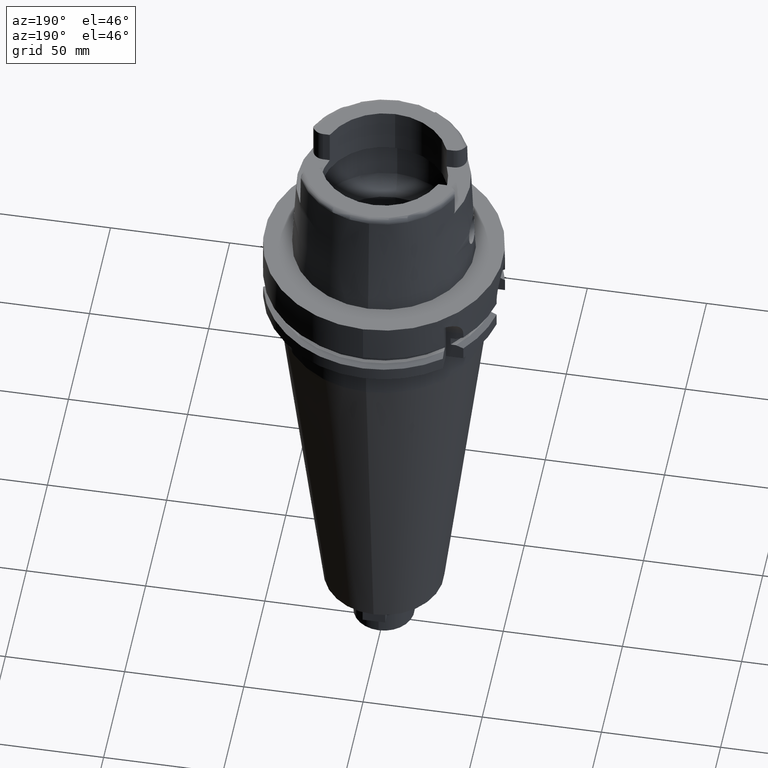
[diagram: clean part render]
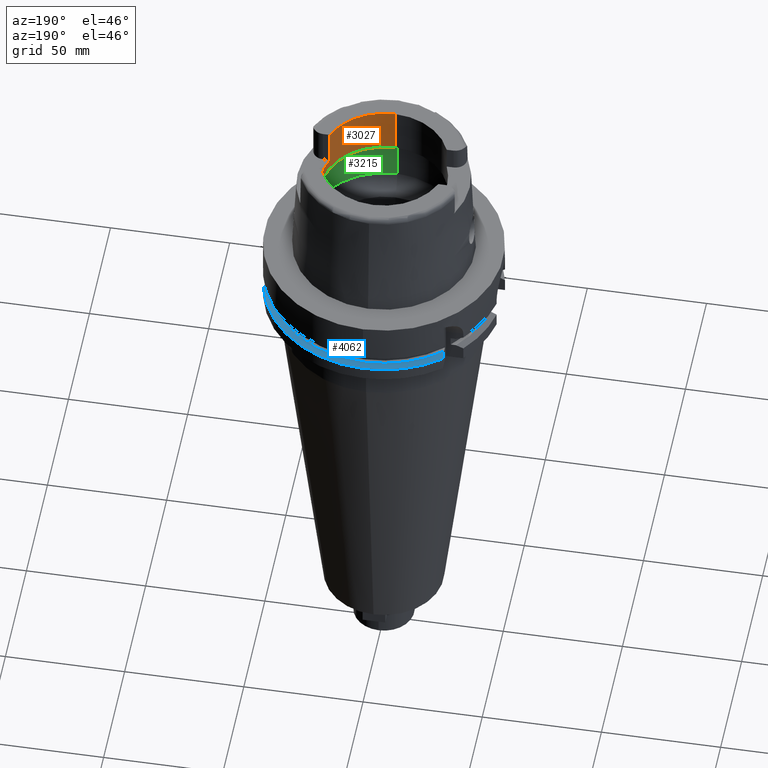
[diagram: same view with three faces highlighted in distinct colors, each labeled with its STEP entity id]
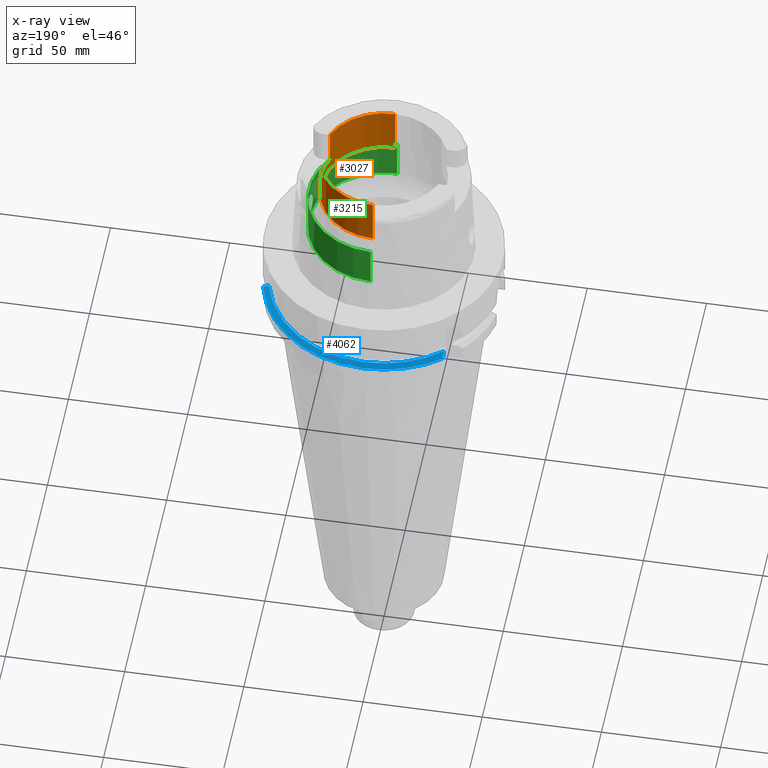
[diagram: x-ray of the same camera — body ghosted, the three highlighted faces saturated]
A machine part, auxiliary view with three faces highlighted in distinct colors.
The next image is the same camera in x-ray (body ghosted, the three faces saturated) — at least one of them is partly hidden behind the body in this view.
Their STEP definitions:

[orange] entity #3027 — the highlighted cylindrical surface (partial cylindrical patch) has radius 26.5 mm, axis along (0, 0, 1).
#42=CARTESIAN_POINT('',(0.E0,0.E0,5.E1));
#43=DIRECTION('',(0.E0,0.E0,1.E0));
#44=DIRECTION('',(9.259134021805E-1,3.777358490566E-1,0.E0));
#45=AXIS2_PLACEMENT_3D('',#42,#43,#44);
#86=DIRECTION('',(0.E0,4.370575506605E-14,1.E0));
#87=VECTOR('',#86,1.999662432703E1);
#88=CARTESIAN_POINT('',(0.E0,-2.65E1,3.000337567297E1));
#89=LINE('',#88,#87);
#183=CARTESIAN_POINT('',(0.E0,0.E0,5.E1));
#184=DIRECTION('',(0.E0,0.E0,1.E0));
#185=DIRECTION('',(0.E0,-1.E0,0.E0));
#186=AXIS2_PLACEMENT_3D('',#183,#184,#185);
#417=CARTESIAN_POINT('',(0.E0,0.E0,3.5E1));
#418=DIRECTION('',(0.E0,0.E0,1.E0));
#419=DIRECTION('',(9.259134021805E-1,-3.777358490566E-1,0.E0));
#420=AXIS2_PLACEMENT_3D('',#417,#418,#419);
#477=DIRECTION('',(0.E0,0.E0,1.E0));
#478=VECTOR('',#477,1.5E1);
#479=CARTESIAN_POINT('',(2.453670515778E1,-1.001E1,3.5E1));
#480=LINE('',#479,#478);
#484=DIRECTION('',(0.E0,-4.370575506605E-14,1.E0));
#485=VECTOR('',#484,1.999662432703E1);
#486=CARTESIAN_POINT('',(0.E0,2.65E1,3.000337567297E1));
#487=LINE('',#486,#485);
#491=DIRECTION('',(0.E0,0.E0,-1.E0));
#492=VECTOR('',#491,1.5E1);
#493=CARTESIAN_POINT('',(2.453670515778E1,1.001E1,5.E1));
#494=LINE('',#493,#492);
#526=CARTESIAN_POINT('',(0.E0,0.E0,3.000337567297E1));
#527=DIRECTION('',(0.E0,0.E0,-1.E0));
#528=DIRECTION('',(0.E0,1.E0,0.E0));
#529=AXIS2_PLACEMENT_3D('',#526,#527,#528);
#2402=CARTESIAN_POINT('',(2.453670515778E1,1.001E1,5.E1));
#2403=VERTEX_POINT('',#2402);
#2404=CARTESIAN_POINT('',(0.E0,2.65E1,5.E1));
#2405=VERTEX_POINT('',#2404);
#2414=CARTESIAN_POINT('',(0.E0,-2.65E1,5.E1));
#2415=VERTEX_POINT('',#2414);
#2416=CARTESIAN_POINT('',(2.453670515778E1,-1.001E1,5.E1));
#2417=VERTEX_POINT('',#2416);
#2432=CARTESIAN_POINT('',(0.E0,2.65E1,3.000337567297E1));
#2433=VERTEX_POINT('',#2432);
#2434=CARTESIAN_POINT('',(0.E0,-2.65E1,3.000337567297E1));
#2435=VERTEX_POINT('',#2434);
#2468=CARTESIAN_POINT('',(2.453670515778E1,-1.001E1,3.5E1));
#2469=CARTESIAN_POINT('',(2.453670515778E1,1.001E1,3.5E1));
#2470=VERTEX_POINT('',#2468);
#2471=VERTEX_POINT('',#2469);
#3009=CARTESIAN_POINT('',(0.E0,0.E0,-2.3035E2));
#3010=DIRECTION('',(0.E0,0.E0,1.E0));
#3011=DIRECTION('',(0.E0,1.E0,0.E0));
#3012=AXIS2_PLACEMENT_3D('',#3009,#3010,#3011);
#3013=CYLINDRICAL_SURFACE('',#3012,2.65E1);
#3014=ORIENTED_EDGE('',*,*,#2991,.F.);
#3016=ORIENTED_EDGE('',*,*,#3015,.T.);
#3017=ORIENTED_EDGE('',*,*,#2873,.F.);
#3018=ORIENTED_EDGE('',*,*,#2820,.F.);
#3020=ORIENTED_EDGE('',*,*,#3019,.F.);
#3021=ORIENTED_EDGE('',*,*,#2816,.T.);
#3022=ORIENTED_EDGE('',*,*,#2767,.F.);
#3024=ORIENTED_EDGE('',*,*,#3023,.T.);
#3025=EDGE_LOOP('',(#3014,#3016,#3017,#3018,#3020,#3021,#3022,#3024));
#3026=FACE_OUTER_BOUND('',#3025,.F.);
#46=CIRCLE('',#45,2.65E1);
#187=CIRCLE('',#186,2.65E1);
#421=CIRCLE('',#420,2.65E1);
#530=CIRCLE('',#529,2.65E1);
#2767=EDGE_CURVE('',#2403,#2405,#46,.T.);
#2816=EDGE_CURVE('',#2433,#2405,#487,.T.);
#2820=EDGE_CURVE('',#2435,#2415,#89,.T.);
#2873=EDGE_CURVE('',#2415,#2417,#187,.T.);
#2991=EDGE_CURVE('',#2470,#2471,#421,.T.);
#3015=EDGE_CURVE('',#2470,#2417,#480,.T.);
#3019=EDGE_CURVE('',#2433,#2435,#530,.T.);
#3023=EDGE_CURVE('',#2403,#2471,#494,.T.);
#3027=ADVANCED_FACE('',(#3026),#3013,.F.);

[blue] entity #4062 — the highlighted conical surface has half-angle 60 deg.
#1678=CARTESIAN_POINT('',(0.E0,0.E0,-2.1875E1));
#1679=DIRECTION('',(0.E0,0.E0,-1.E0));
#1680=DIRECTION('',(-6.614507215588E-1,7.499886285467E-1,0.E0));
#1681=AXIS2_PLACEMENT_3D('',#1678,#1679,#1680);
#1686=CARTESIAN_POINT('',(0.E0,0.E0,-2.1875E1));
#1687=DIRECTION('',(0.E0,0.E0,-1.E0));
#1688=DIRECTION('',(0.E0,1.E0,0.E0));
#1689=AXIS2_PLACEMENT_3D('',#1686,#1687,#1688);
#1710=CARTESIAN_POINT('',(-3.150000097289E1,3.571639618402E1,-2.1875E1));
#1711=CARTESIAN_POINT('',(-3.150000097289E1,3.605789002737E1,
-2.202286891912E1));
#1712=CARTESIAN_POINT('',(-3.150000002063E1,3.674380017621E1,
-2.232173054124E1));
#1713=CARTESIAN_POINT('',(-3.149999846845E1,3.778158713267E1,
-2.277929841516E1));
#1714=CARTESIAN_POINT('',(-3.150000355986E1,3.847935690318E1,
-2.309050172011E1));
#1715=CARTESIAN_POINT('',(-3.150000355986E1,3.882975374283E1,
-2.324760820812E1));
#1720=CARTESIAN_POINT('',(0.E0,0.E0,-2.324759526419E1));
#1721=DIRECTION('',(0.E0,0.E0,-1.E0));
#1722=DIRECTION('',(-6.3E-1,7.765951326142E-1,0.E0));
#1723=AXIS2_PLACEMENT_3D('',#1720,#1721,#1722);
#1728=CARTESIAN_POINT('',(0.E0,0.E0,-2.324759526419E1));
#1729=DIRECTION('',(0.E0,0.E0,-1.E0));
#1730=DIRECTION('',(0.E0,1.E0,0.E0));
#1731=AXIS2_PLACEMENT_3D('',#1728,#1729,#1730);
#1736=CARTESIAN_POINT('',(4.877499359303E1,1.1E1,-2.324759526419E1));
#1737=CARTESIAN_POINT('',(4.850402780016E1,1.1E1,-2.309498594403E1));
#1738=CARTESIAN_POINT('',(4.796198326448E1,1.1E1,-2.278983319674E1));
#1739=CARTESIAN_POINT('',(4.714858158705E1,1.1E1,-2.233229423038E1));
#1740=CARTESIAN_POINT('',(4.660608588337E1,1.1E1,-2.202740424370E1));
#1741=CARTESIAN_POINT('',(4.633477721644E1,1.1E1,-2.1875E1));
#2616=CARTESIAN_POINT('',(-3.150000355986E1,3.882975374283E1,
-2.324760820812E1));
#2617=VERTEX_POINT('',#2616);
#2618=VERTEX_POINT('',#1710);
#2636=CARTESIAN_POINT('',(4.877499359303E1,1.1E1,-2.324759526419E1));
#2637=VERTEX_POINT('',#2636);
#2638=CARTESIAN_POINT('',(0.E0,5.E1,-2.324759526419E1));
#2639=VERTEX_POINT('',#2638);
#2675=VERTEX_POINT('',#1741);
#2676=CARTESIAN_POINT('',(-1.598721155460E-14,4.762259526419E1,-2.1875E1));
#2677=VERTEX_POINT('',#2676);
#4049=CARTESIAN_POINT('',(0.E0,0.E0,-2.256129763210E1));
#4050=DIRECTION('',(0.E0,0.E0,-1.E0));
#4051=DIRECTION('',(0.E0,-1.E0,0.E0));
#4052=AXIS2_PLACEMENT_3D('',#4049,#4050,#4051);
#4053=CONICAL_SURFACE('',#4052,4.881129763209E1,6.E1);
#4054=ORIENTED_EDGE('',*,*,#3715,.T.);
#4055=ORIENTED_EDGE('',*,*,#3746,.T.);
#4056=ORIENTED_EDGE('',*,*,#3744,.T.);
#4057=ORIENTED_EDGE('',*,*,#3771,.T.);
#4058=ORIENTED_EDGE('',*,*,#4041,.F.);
#4059=ORIENTED_EDGE('',*,*,#4039,.F.);
#4060=EDGE_LOOP('',(#4054,#4055,#4056,#4057,#4058,#4059));
#4061=FACE_OUTER_BOUND('',#4060,.F.);
#1682=CIRCLE('',#1681,4.762259526419E1);
#1690=CIRCLE('',#1689,4.762259526419E1);
#1716=B_SPLINE_CURVE_WITH_KNOTS('',3,(#1710,#1711,#1712,#1713,#1714,#1715),
.UNSPECIFIED.,.F.,.F.,(4,1,1,4),(0.E0,3.333333333333E-1,6.666666666667E-1,1.E0),
.UNSPECIFIED.);
#1724=CIRCLE('',#1723,5.E1);
#1732=CIRCLE('',#1731,5.E1);
#1742=B_SPLINE_CURVE_WITH_KNOTS('',3,(#1736,#1737,#1738,#1739,#1740,#1741),
.UNSPECIFIED.,.F.,.F.,(4,1,1,4),(0.E0,3.333333333333E-1,6.666666666667E-1,1.E0),
.UNSPECIFIED.);
#3715=EDGE_CURVE('',#2618,#2617,#1716,.T.);
#3744=EDGE_CURVE('',#2639,#2637,#1732,.T.);
#3746=EDGE_CURVE('',#2617,#2639,#1724,.T.);
#3771=EDGE_CURVE('',#2637,#2675,#1742,.T.);
#4039=EDGE_CURVE('',#2618,#2677,#1682,.T.);
#4041=EDGE_CURVE('',#2677,#2675,#1690,.T.);
#4062=ADVANCED_FACE('',(#4061),#4053,.T.);

[green] entity #3215 — the highlighted cylindrical surface (partial cylindrical patch) has radius 31.5 mm, axis along (0, 0, 1).
#534=CARTESIAN_POINT('',(0.E0,0.E0,2.711662432703E1));
#535=DIRECTION('',(0.E0,0.E0,1.E0));
#536=DIRECTION('',(0.E0,-1.E0,0.E0));
#537=AXIS2_PLACEMENT_3D('',#534,#535,#536);
#582=DIRECTION('',(0.E0,5.000414258470E-14,1.E0));
#583=VECTOR('',#582,1.762E1);
#584=CARTESIAN_POINT('',(0.E0,-3.15E1,9.496624327026E0));
#585=LINE('',#584,#583);
#682=CARTESIAN_POINT('',(0.E0,0.E0,9.496624327026E0));
#683=DIRECTION('',(0.E0,0.E0,-1.E0));
#684=DIRECTION('',(9.971171061384E-1,-7.587803796965E-2,0.E0));
#685=AXIS2_PLACEMENT_3D('',#682,#683,#684);
#706=CARTESIAN_POINT('',(0.E0,0.E0,9.496624327026E0));
#707=DIRECTION('',(0.E0,0.E0,-1.E0));
#708=DIRECTION('',(0.E0,1.E0,0.E0));
#709=AXIS2_PLACEMENT_3D('',#706,#707,#708);
#731=CARTESIAN_POINT('',(3.140918884336E1,-2.390158196044E0,9.496624327026E0));
#732=CARTESIAN_POINT('',(3.136994813364E1,-2.905822332365E0,9.720581210051E0));
#733=CARTESIAN_POINT('',(3.127457905672E1,-3.833750490599E0,1.028801637320E1));
#734=CARTESIAN_POINT('',(3.110936834370E1,-4.977047791160E0,1.151377122303E1));
#735=CARTESIAN_POINT('',(3.097607711511E1,-5.729099832603E0,1.298184817400E1));
#736=CARTESIAN_POINT('',(3.091126142545E1,-6.061189444425E0,1.459712981849E1));
#737=CARTESIAN_POINT('',(3.093402224896E1,-5.946723392596E0,1.623980758094E1));
#738=CARTESIAN_POINT('',(3.103820285493E1,-5.392168183183E0,1.780058899294E1));
#739=CARTESIAN_POINT('',(3.119433825247E1,-4.427130194304E0,1.916132218787E1));
#740=CARTESIAN_POINT('',(3.135439655151E1,-3.136858799730E0,2.020349005970E1));
#741=CARTESIAN_POINT('',(3.147165624241E1,-1.614858231814E0,2.085381037817E1));
#742=CARTESIAN_POINT('',(3.15E1,-5.517545258881E-1,2.1E1));
#743=CARTESIAN_POINT('',(3.15E1,0.E0,2.1E1));
#748=CARTESIAN_POINT('',(3.15E1,0.E0,2.1E1));
#749=CARTESIAN_POINT('',(3.15E1,5.556466192413E-1,2.1E1));
#750=CARTESIAN_POINT('',(3.147125579866E1,1.625009170421E0,2.085177074407E1));
#751=CARTESIAN_POINT('',(3.135290495454E1,3.152112798073E0,2.019488345505E1));
#752=CARTESIAN_POINT('',(3.119215802335E1,4.442238319047E0,1.914560258888E1));
#753=CARTESIAN_POINT('',(3.103625200137E1,5.403105293116E0,1.777954630166E1));
#754=CARTESIAN_POINT('',(3.093312144149E1,5.951277547169E0,1.621713017363E1));
#755=CARTESIAN_POINT('',(3.091160407577E1,6.059484372703E0,1.457613905788E1));
#756=CARTESIAN_POINT('',(3.097722916939E1,5.722986961258E0,1.296572140984E1));
#757=CARTESIAN_POINT('',(3.111058680173E1,4.969405675126E0,1.150375305319E1));
#758=CARTESIAN_POINT('',(3.127519646746E1,3.828318161330E0,1.028431487238E1));
#759=CARTESIAN_POINT('',(3.137011574467E1,2.903619747440E0,9.719624610552E0));
#760=CARTESIAN_POINT('',(3.140918884336E1,2.390158196044E0,9.496624327026E0));
#765=DIRECTION('',(0.E0,-5.000414258470E-14,1.E0));
#766=VECTOR('',#765,1.762E1);
#767=CARTESIAN_POINT('',(0.E0,3.15E1,9.496624327026E0));
#768=LINE('',#767,#766);
#2480=CARTESIAN_POINT('',(0.E0,3.15E1,2.711662432703E1));
#2481=VERTEX_POINT('',#2480);
#2482=CARTESIAN_POINT('',(0.E0,-3.15E1,2.711662432703E1));
#2483=VERTEX_POINT('',#2482);
#2486=CARTESIAN_POINT('',(0.E0,-3.15E1,9.496624327026E0));
#2487=VERTEX_POINT('',#2486);
#2488=CARTESIAN_POINT('',(0.E0,3.15E1,9.496624327026E0));
#2489=VERTEX_POINT('',#2488);
#2494=VERTEX_POINT('',#731);
#2495=VERTEX_POINT('',#743);
#2497=VERTEX_POINT('',#760);
#3200=CARTESIAN_POINT('',(0.E0,0.E0,-2.3035E2));
#3201=DIRECTION('',(0.E0,0.E0,1.E0));
#3202=DIRECTION('',(0.E0,1.E0,0.E0));
#3203=AXIS2_PLACEMENT_3D('',#3200,#3201,#3202);
#3204=CYLINDRICAL_SURFACE('',#3203,3.15E1);
#3205=ORIENTED_EDGE('',*,*,#3189,.T.);
#3207=ORIENTED_EDGE('',*,*,#3206,.T.);
#3208=ORIENTED_EDGE('',*,*,#3177,.F.);
#3209=ORIENTED_EDGE('',*,*,#3107,.T.);
#3210=ORIENTED_EDGE('',*,*,#3077,.F.);
#3211=ORIENTED_EDGE('',*,*,#3104,.F.);
#3212=ORIENTED_EDGE('',*,*,#3171,.F.);
#3213=EDGE_LOOP('',(#3205,#3207,#3208,#3209,#3210,#3211,#3212));
#3214=FACE_OUTER_BOUND('',#3213,.F.);
#538=CIRCLE('',#537,3.15E1);
#686=CIRCLE('',#685,3.15E1);
#710=CIRCLE('',#709,3.15E1);
#744=B_SPLINE_CURVE_WITH_KNOTS('',3,(#731,#732,#733,#734,#735,#736,#737,#738,
#739,#740,#741,#742,#743),.UNSPECIFIED.,.F.,.F.,(4,1,1,1,1,1,1,1,1,1,4),(0.E0,
1.E-1,2.E-1,3.E-1,4.E-1,5.E-1,6.E-1,7.E-1,8.E-1,9.E-1,1.E0),.UNSPECIFIED.);
#761=B_SPLINE_CURVE_WITH_KNOTS('',3,(#748,#749,#750,#751,#752,#753,#754,#755,
#756,#757,#758,#759,#760),.UNSPECIFIED.,.F.,.F.,(4,1,1,1,1,1,1,1,1,1,4),(0.E0,
1.E-1,2.E-1,3.E-1,4.E-1,5.E-1,6.E-1,7.E-1,8.E-1,9.E-1,1.E0),.UNSPECIFIED.);
#3077=EDGE_CURVE('',#2483,#2481,#538,.T.);
#3104=EDGE_CURVE('',#2487,#2483,#585,.T.);
#3107=EDGE_CURVE('',#2489,#2481,#768,.T.);
#3171=EDGE_CURVE('',#2494,#2487,#686,.T.);
#3177=EDGE_CURVE('',#2489,#2497,#710,.T.);
#3189=EDGE_CURVE('',#2494,#2495,#744,.T.);
#3206=EDGE_CURVE('',#2495,#2497,#761,.T.);
#3215=ADVANCED_FACE('',(#3214),#3204,.F.);